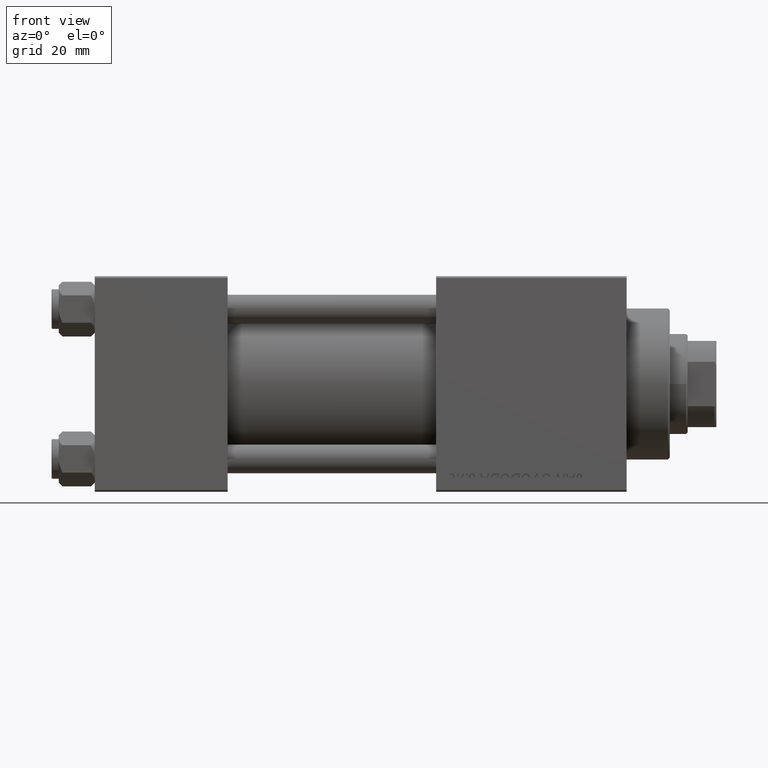
[diagram: clean part render]
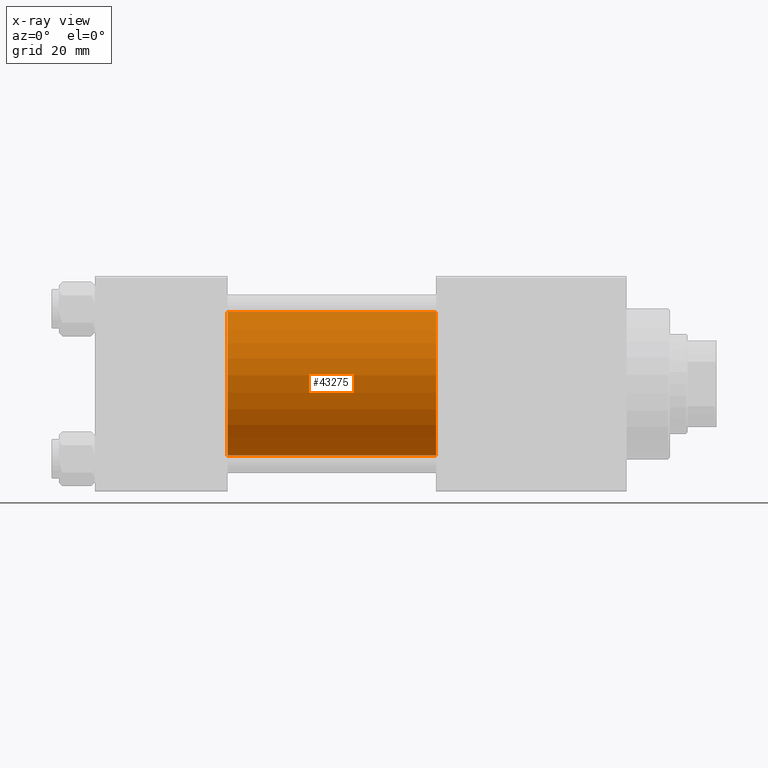
[diagram: x-ray — body ghosted, one internal face saturated and labeled with its STEP entity id]
A machine part, front view, then the same camera in x-ray: the body is ghosted and one INTERNAL B-rep face — a face not visible from any outside direction — is saturated and labeled: STEP entity #43275.
In plain terms, the highlighted cylindrical surface (partial cylindrical patch) has radius 20 mm, axis along (-1, -0, -0).
Its self-contained STEP definition (entity closure, byte-faithful):
#594 = CARTESIAN_POINT ( 'NONE',  ( 95.00000000000000000, -2.602085213965210642E-15, 0.000000000000000000 ) ) ;
#888 = ORIENTED_EDGE ( 'NONE', *, *, #11261, .F. ) ;
#1755 = AXIS2_PLACEMENT_3D ( 'NONE', #39035, #39539, #38785 ) ;
#1936 = AXIS2_PLACEMENT_3D ( 'NONE', #594, #39948, #39186 ) ;
#3078 = FACE_OUTER_BOUND ( 'NONE', #36643, .T. ) ;
#4435 = VERTEX_POINT ( 'NONE', #11688 ) ;
#6195 = VERTEX_POINT ( 'NONE', #34574 ) ;
#11261 = EDGE_CURVE ( 'NONE', #45897, #6195, #38250, .T. ) ;
#11688 = CARTESIAN_POINT ( 'NONE',  ( 95.00000000000000000, -2.602085213965210642E-15, 20.00000000000000000 ) ) ;
#11957 = CARTESIAN_POINT ( 'NONE',  ( 95.00000000000000000, -2.602085213965210642E-15, 0.000000000000000000 ) ) ;
#13947 = CARTESIAN_POINT ( 'NONE',  ( 95.00000000000000000, -1.527916156705046464E-16, -20.00000000000000000 ) ) ;
#15203 = ORIENTED_EDGE ( 'NONE', *, *, #30787, .T. ) ;
#17489 = CARTESIAN_POINT ( 'NONE',  ( 95.00000000000000000, -2.602085213965210642E-15, 20.00000000000000000 ) ) ;
#17690 = ORIENTED_EDGE ( 'NONE', *, *, #17801, .T. ) ;
#17801 = EDGE_CURVE ( 'NONE', #4435, #26685, #26260, .T. ) ;
#18470 = CARTESIAN_POINT ( 'NONE',  ( 95.00000000000000000, -1.527916156705046464E-16, -20.00000000000000000 ) ) ;
#22746 = ORIENTED_EDGE ( 'NONE', *, *, #30041, .F. ) ;
#24392 = DIRECTION ( 'NONE',  ( -1.000000000000000000, -0.000000000000000000, -0.000000000000000000 ) ) ;
#25098 = LINE ( 'NONE', #17489, #48420 ) ;
#26088 = LINE ( 'NONE', #18470, #44405 ) ;
#26260 = CIRCLE ( 'NONE', #1936, 20.00000000000000000 ) ;
#26685 = VERTEX_POINT ( 'NONE', #13947 ) ;
#27450 = DIRECTION ( 'NONE',  ( 0.000000000000000000, 0.000000000000000000, 1.000000000000000000 ) ) ;
#30041 = EDGE_CURVE ( 'NONE', #4435, #45897, #25098, .T. ) ;
#30787 = EDGE_CURVE ( 'NONE', #26685, #6195, #26088, .T. ) ;
#31533 = AXIS2_PLACEMENT_3D ( 'NONE', #11957, #24392, #27450 ) ;
#32377 = CARTESIAN_POINT ( 'NONE',  ( 37.00000000000000000, -2.602085213965210642E-15, 20.00000000000000000 ) ) ;
#32971 = DIRECTION ( 'NONE',  ( -1.000000000000000000, -0.000000000000000000, -0.000000000000000000 ) ) ;
#34574 = CARTESIAN_POINT ( 'NONE',  ( 37.00000000000000000, -1.527916156705046464E-16, -20.00000000000000000 ) ) ;
#36643 = EDGE_LOOP ( 'NONE', ( #17690, #15203, #888, #22746 ) ) ;
#38250 = CIRCLE ( 'NONE', #1755, 20.00000000000000000 ) ;
#38785 = DIRECTION ( 'NONE',  ( 0.000000000000000000, 0.000000000000000000, -1.000000000000000000 ) ) ;
#39035 = CARTESIAN_POINT ( 'NONE',  ( 37.00000000000000000, -2.602085213965210642E-15, 0.000000000000000000 ) ) ;
#39186 = DIRECTION ( 'NONE',  ( 0.000000000000000000, 0.000000000000000000, -1.000000000000000000 ) ) ;
#39539 = DIRECTION ( 'NONE',  ( 1.000000000000000000, 0.000000000000000000, 0.000000000000000000 ) ) ;
#39948 = DIRECTION ( 'NONE',  ( 1.000000000000000000, 0.000000000000000000, 0.000000000000000000 ) ) ;
#43275 = ADVANCED_FACE ( 'NONE', ( #3078 ), #49553, .F. ) ;
#44405 = VECTOR ( 'NONE', #32971, 1000.000000000000000 ) ;
#45897 = VERTEX_POINT ( 'NONE', #32377 ) ;
#47210 = DIRECTION ( 'NONE',  ( -1.000000000000000000, -0.000000000000000000, -0.000000000000000000 ) ) ;
#48420 = VECTOR ( 'NONE', #47210, 1000.000000000000000 ) ;
#49553 = CYLINDRICAL_SURFACE ( 'NONE', #31533, 20.00000000000000000 ) ;